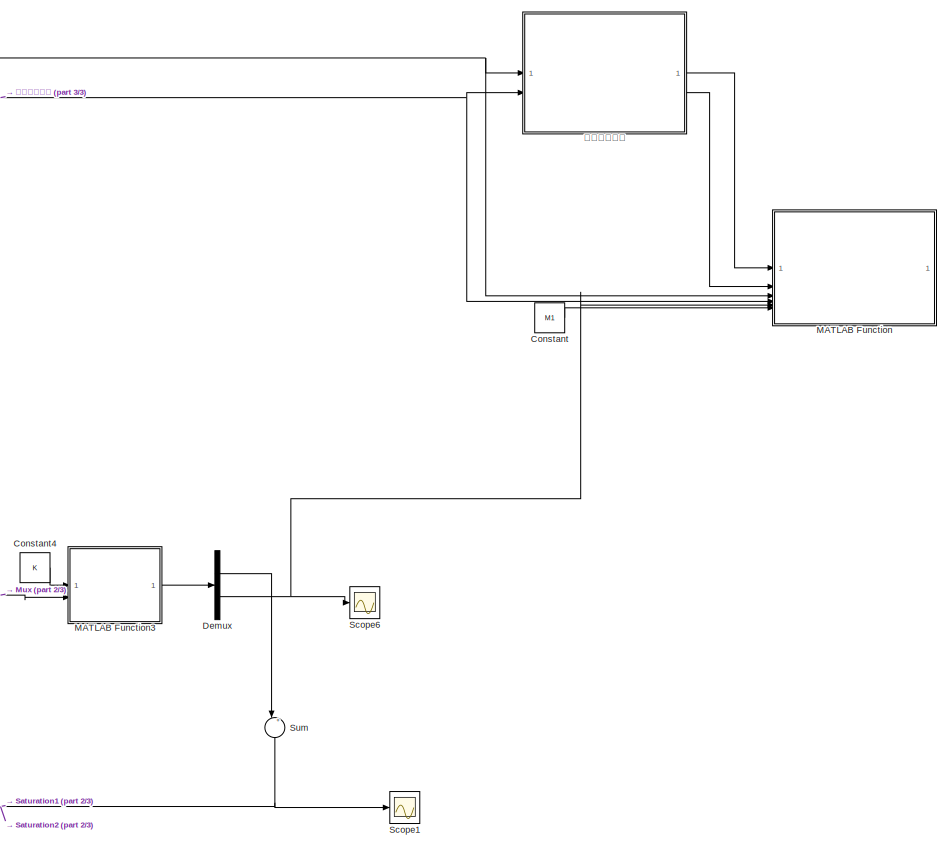
[diagram: root canvas - part 1/3, right side, full height]
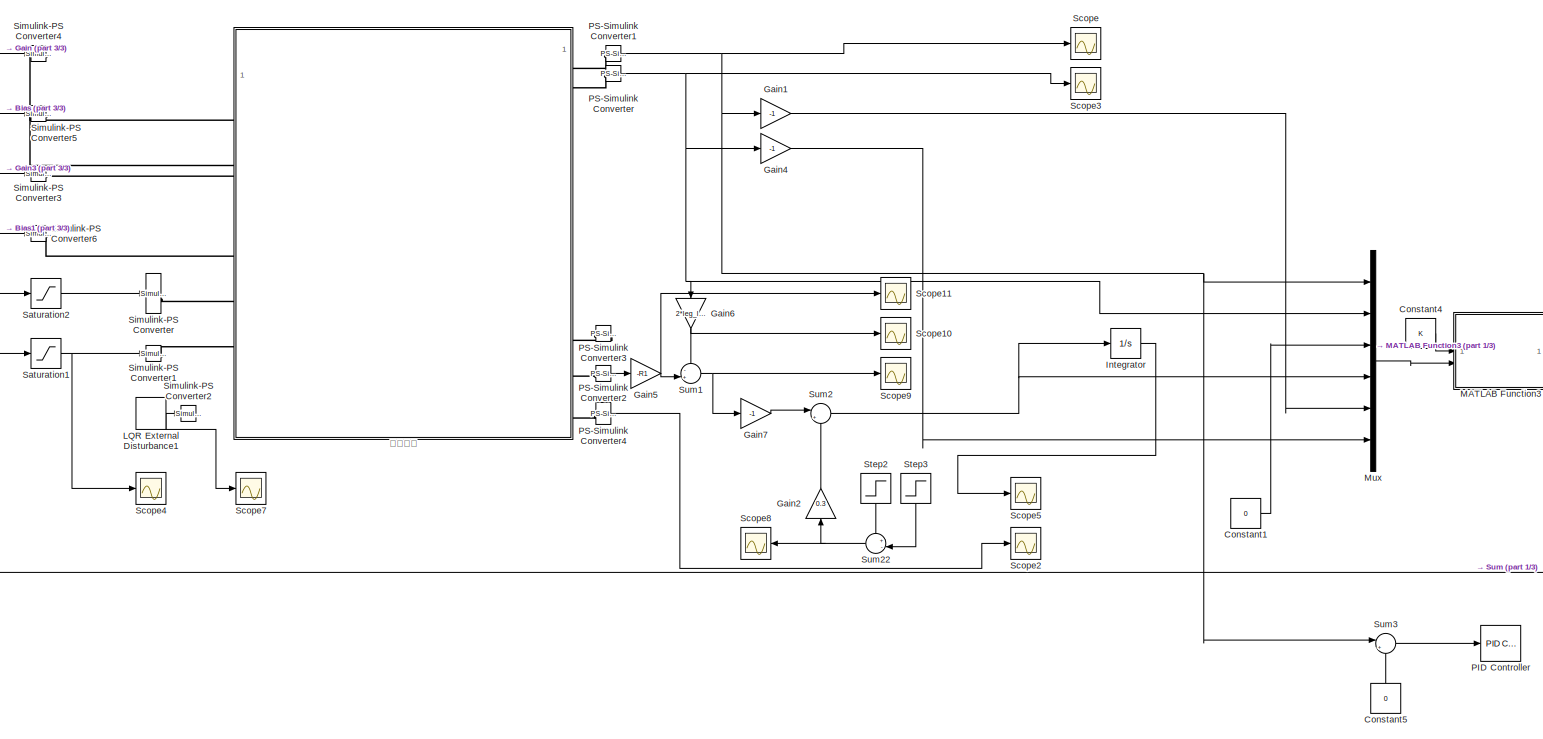
[diagram: root canvas - part 2/3, center side, full height]
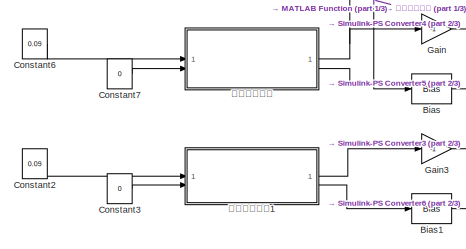
[diagram: root canvas - part 3/3, middle left region]
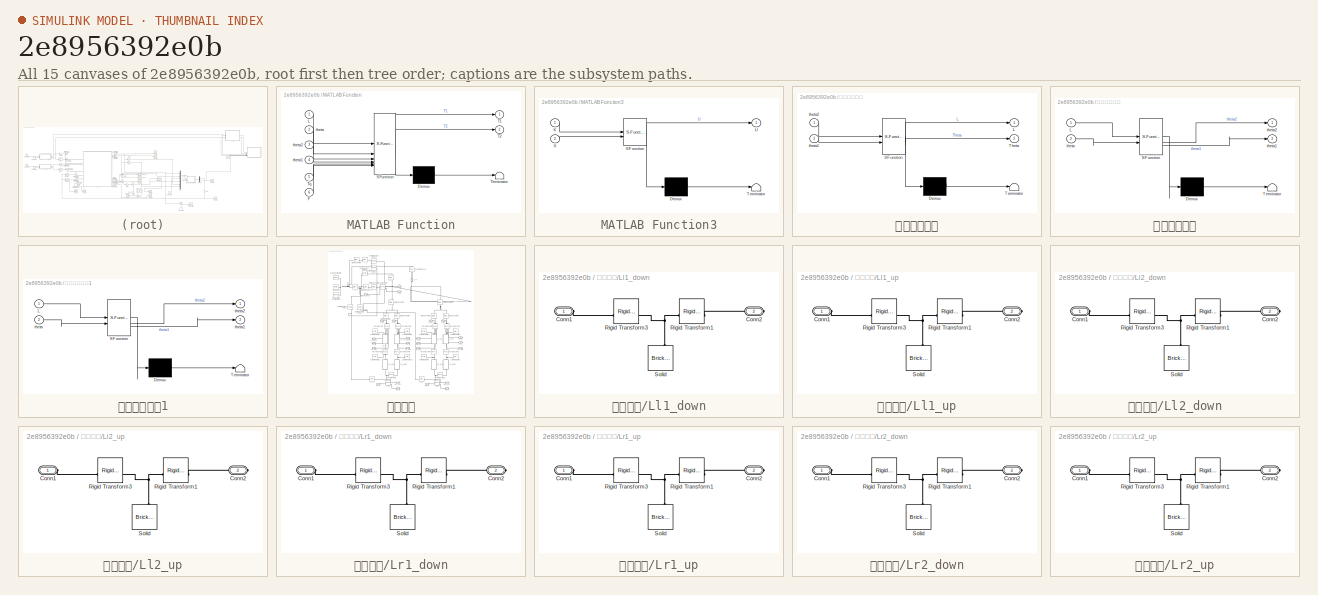
[diagram: thumbnail index - all 15 canvases of the model, root first then tree order]
MODEL slx_2e8956392e0b
KIND model
CONFIG AbsTol = auto
CONFIG EnableMultiTasking = off
CONFIG FixedStep = 0.001
CONFIG MaxStep = auto
CONFIG MinStep = auto
CONFIG RelTol = 1e-3
CONFIG SampleTimeConstraint = Unconstrained
CONFIG SolverName = VariableStepAuto
CONFIG StartTime = 0.0
CONFIG StopTime = 15
BLOCK [Bias] Bias
  Bias = -pi
  SaturateOnIntegerOverflow = off
BLOCK [Bias] Bias1
  Bias = -pi
  SaturateOnIntegerOverflow = off
BLOCK [Constant] Constant
  Value = M1
BLOCK [Constant] Constant1
  Value = 0
BLOCK [Constant] Constant2
  Value = 0.09
BLOCK [Constant] Constant3
  Value = 0
BLOCK [Constant] Constant4
  Value = K
BLOCK [Constant] Constant5
  NameLocation = right
  Value = 0
BLOCK [Constant] Constant6
  Value = 0.09
BLOCK [Constant] Constant7
  Value = 0
BLOCK [Demux] Demux
  Outputs = 2
BLOCK [Gain] Gain
  Gain = -1
BLOCK [Gain] Gain1
  Gain = -1
BLOCK [Gain] Gain2
  Gain = 0.3
  NameLocation = right
BLOCK [Gain] Gain3
  Gain = -1
BLOCK [Gain] Gain4
  Gain = -1
BLOCK [Gain] Gain5
  Gain = -R1
BLOCK [Gain] Gain6
  Gain = 2*leg_length
  NameLocation = left
BLOCK [Gain] Gain7
  Gain = -1
BLOCK [Integrator] Integrator
BLOCK [DiscretePulseGenerator] LQR External Disturbance1
  Amplitude = 10
  Period = 20
  PhaseDelay = 0.5
  PulseType = Time based
  PulseWidth = 0.1
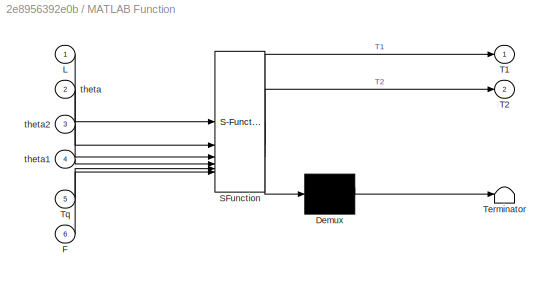
BLOCK [SubSystem] MATLAB Function
  ErrorFcn = Stateflow.Translate.translate
  PermitHierarchicalResolution = ExplicitOnly
  SFBlockType = MATLAB Function
  TreatAsAtomicUnit = on
BLOCK [Demux] MATLAB Function/ Demux 
  Outputs = 1
BLOCK [S-Function] MATLAB Function/ SFunction 
  EnableBusSupport = on
  FunctionName = sf_sfun
  PortCounts = [6 3]
  SFcnIsStateOwnerBlock = off
  SFunctionDeploymentMode = off
  Tag = Stateflow S-Function 1
BLOCK [Terminator] MATLAB Function/ Terminator 
BLOCK [Inport] MATLAB Function/F
  Port = 6
BLOCK [Inport] MATLAB Function/L
BLOCK [Outport] MATLAB Function/T1
  VectorParamsAs1DForOutWhenUnconnected = off
BLOCK [Outport] MATLAB Function/T2
  Port = 2
BLOCK [Inport] MATLAB Function/Tq
  Port = 5
BLOCK [Inport] MATLAB Function/theta
  Port = 2
BLOCK [Inport] MATLAB Function/theta1
  Port = 4
BLOCK [Inport] MATLAB Function/theta2
  Port = 3
BLOCK [SubSystem] MATLAB Function3
  ErrorFcn = Stateflow.Translate.translate
  PermitHierarchicalResolution = ExplicitOnly
  SFBlockType = MATLAB Function
  TreatAsAtomicUnit = on
BLOCK [Demux] MATLAB Function3/ Demux 
  Outputs = 1
BLOCK [S-Function] MATLAB Function3/ SFunction 
  EnableBusSupport = on
  FunctionName = sf_sfun
  PortCounts = [2 2]
  SFcnIsStateOwnerBlock = off
  SFunctionDeploymentMode = off
  Tag = Stateflow S-Function 6
BLOCK [Terminator] MATLAB Function3/ Terminator 
BLOCK [Inport] MATLAB Function3/K
BLOCK [Outport] MATLAB Function3/U
BLOCK [Inport] MATLAB Function3/X
  Port = 2
BLOCK [Mux] Mux
  DisplayOption = bar
  Inputs = 6
BLOCK [Reference] PID Controller  REF=slpidlib/PID Controller
  LibrarySourceBlock = simulink/Continuous/PID Controller
  SourceBlock = slpidlib/PID Controller
  SourceType = PID 1dof
BLOCK [Reference] PS-Simulink Converter  REF=nesl_utility/PS-Simulink
Converter
  SourceBlock = nesl_utility/PS-Simulink\nConverter
  SourceType = PS-Simulink\nConverter
BLOCK [Reference] PS-Simulink Converter1  REF=nesl_utility/PS-Simulink
Converter
  SourceBlock = nesl_utility/PS-Simulink\nConverter
  SourceType = PS-Simulink\nConverter
BLOCK [Reference] PS-Simulink Converter2  REF=nesl_utility/PS-Simulink
Converter
  SourceBlock = nesl_utility/PS-Simulink\nConverter
  SourceType = PS-Simulink\nConverter
BLOCK [Reference] PS-Simulink Converter3  REF=nesl_utility/PS-Simulink
Converter
  SourceBlock = nesl_utility/PS-Simulink\nConverter
  SourceType = PS-Simulink\nConverter
BLOCK [Reference] PS-Simulink Converter4  REF=nesl_utility/PS-Simulink
Converter
  SourceBlock = nesl_utility/PS-Simulink\nConverter
  SourceType = PS-Simulink\nConverter
BLOCK [Saturate] Saturation1
  LowerLimit = -20
  NameLocation = top
  UpperLimit = 20
  ZeroCross = off
BLOCK [Saturate] Saturation2
  LowerLimit = -20
  NameLocation = top
  UpperLimit = 20
  ZeroCross = off
BLOCK [Scope] Scope
  Floating = off
  NumInputPorts = 1
  ScopeSpecificationString = Simulink.scopes.TimeScopeBlockCfg('CurrentConfiguration', extmgr.ConfigurationSet(extmgr.Configuration('Core','General UI',true),extmgr.Configuration('Core','Source UI',true),extmgr.Configuration('Sources','WiredSimulink',true),extmgr.Configuration('Visuals','Time Domain',true,'SerializedDisplays',{struct('MinYLimReal','-0.93588','MaxYLimReal','0.63035','YLabelReal','','MinYLimMag','0.00000','MaxY...<+1442ch>
BLOCK [Scope] Scope1
  Floating = off
  NumInputPorts = 1
  ScopeSpecificationString = Simulink.scopes.TimeScopeBlockCfg('CurrentConfiguration', extmgr.ConfigurationSet(extmgr.Configuration('Core','General UI',true),extmgr.Configuration('Core','Source UI',true),extmgr.Configuration('Sources','WiredSimulink',true,'DataLoggingVariableName','ScopeData1'),extmgr.Configuration('Visuals','Time Domain',true,'SerializedDisplays',{struct('MinYLimReal','-0.45389','MaxYLimReal','0.45817','YLab...<+1475ch>
BLOCK [Scope] Scope10
  Floating = off
  NumInputPorts = 1
  ScopeSpecificationString = Simulink.scopes.TimeScopeBlockCfg('CurrentConfiguration', extmgr.ConfigurationSet(extmgr.Configuration('Core','General UI',true),extmgr.Configuration('Core','Source UI',true),extmgr.Configuration('Sources','WiredSimulink',true,'DataLoggingVariableName','ScopeData4'),extmgr.Configuration('Visuals','Time Domain',true,'SerializedDisplays',{struct('MinYLimReal','-0.22835','MaxYLimReal','0.22851','YLab...<+1490ch>
BLOCK [Scope] Scope11
  Floating = off
  NumInputPorts = 1
  ScopeSpecificationString = Simulink.scopes.TimeScopeBlockCfg('CurrentConfiguration', extmgr.ConfigurationSet(extmgr.Configuration('Core','General UI',true),extmgr.Configuration('Core','Source UI',true),extmgr.Configuration('Sources','WiredSimulink',true,'DataLoggingVariableName','ScopeData2'),extmgr.Configuration('Visuals','Time Domain',true,'SerializedDisplays',{struct('MinYLimReal','-0.30669','MaxYLimReal','0.22953','YLab...<+1490ch>
BLOCK [Scope] Scope2
  Floating = off
  NumInputPorts = 1
  ScopeSpecificationString = Simulink.scopes.TimeScopeBlockCfg('CurrentConfiguration', extmgr.ConfigurationSet(extmgr.Configuration('Core','General UI',true),extmgr.Configuration('Core','Source UI',true),extmgr.Configuration('Sources','WiredSimulink',true,'DataLoggingVariableName','ScopeData1'),extmgr.Configuration('Visuals','Time Domain',true,'SerializedDisplays',{struct('MinYLimReal','-0.26912','MaxYLimReal','2.42206','YLab...<+1481ch>
BLOCK [Scope] Scope3
  Floating = off
  NumInputPorts = 1
  ScopeSpecificationString = Simulink.scopes.TimeScopeBlockCfg('CurrentConfiguration', extmgr.ConfigurationSet(extmgr.Configuration('Core','General UI',true),extmgr.Configuration('Core','Source UI',true),extmgr.Configuration('Sources','WiredSimulink',true,'DataLoggingVariableName','ScopeData3'),extmgr.Configuration('Visuals','Time Domain',true,'SerializedDisplays',{struct('MinYLimReal','-4.54103','MaxYLimReal','5.36349','YLab...<+1493ch>
BLOCK [Scope] Scope4
  Floating = off
  NumInputPorts = 1
  ScopeSpecificationString = Simulink.scopes.TimeScopeBlockCfg('CurrentConfiguration', extmgr.ConfigurationSet(extmgr.Configuration('Core','General UI',true),extmgr.Configuration('Core','Source UI',true),extmgr.Configuration('Sources','WiredSimulink',true,'DataLoggingVariableName','ScopeData1'),extmgr.Configuration('Visuals','Time Domain',true,'SerializedDisplays',{struct('MinYLimReal','-25.00000','MaxYLimReal','25.00000','YL...<+1476ch>
BLOCK [Scope] Scope5
  Floating = off
  NumInputPorts = 1
  ScopeSpecificationString = Simulink.scopes.TimeScopeBlockCfg('CurrentConfiguration', extmgr.ConfigurationSet(extmgr.Configuration('Core','General UI',true),extmgr.Configuration('Core','Source UI',true),extmgr.Configuration('Sources','WiredSimulink',true,'DataLoggingVariableName','ScopeData2'),extmgr.Configuration('Visuals','Time Domain',true,'SerializedDisplays',{struct('MinYLimReal','-0.33885','MaxYLimReal','0.03765','YLab...<+1482ch>
BLOCK [Scope] Scope6
  Floating = off
  NumInputPorts = 1
  ScopeSpecificationString = Simulink.scopes.TimeScopeBlockCfg('CurrentConfiguration', extmgr.ConfigurationSet(extmgr.Configuration('Core','General UI',true),extmgr.Configuration('Core','Source UI',true),extmgr.Configuration('Sources','WiredSimulink',true,'DataLoggingVariableName','ScopeData2'),extmgr.Configuration('Visuals','Time Domain',true,'SerializedDisplays',{struct('MinYLimReal','-23.55546','MaxYLimReal','1.77895','YLa...<+1483ch>
BLOCK [Scope] Scope7
  Floating = off
  NumInputPorts = 1
  ScopeSpecificationString = Simulink.scopes.TimeScopeBlockCfg('CurrentConfiguration', extmgr.ConfigurationSet(extmgr.Configuration('Core','General UI',true),extmgr.Configuration('Core','Source UI',true),extmgr.Configuration('Sources','WiredSimulink',true,'DataLoggingVariableName','ScopeData1'),extmgr.Configuration('Visuals','Time Domain',true,'SerializedDisplays',{struct('MinYLimReal','-0.375','MaxYLimReal','3.375','YLabelRe...<+1472ch>
BLOCK [Scope] Scope8
  Floating = off
  NameLocation = top
  NumInputPorts = 1
  ScopeSpecificationString = Simulink.scopes.TimeScopeBlockCfg('CurrentConfiguration', extmgr.ConfigurationSet(extmgr.Configuration('Core','General UI',true),extmgr.Configuration('Core','Source UI',true),extmgr.Configuration('Sources','WiredSimulink',true,'DataLoggingVariableName','ScopeData3'),extmgr.Configuration('Visuals','Time Domain',true,'SerializedDisplays',{struct('MinYLimReal','-0.3125','MaxYLimReal','2.8125','YLabel...<+1458ch>
BLOCK [Scope] Scope9
  Floating = off
  NumInputPorts = 1
  ScopeSpecificationString = Simulink.scopes.TimeScopeBlockCfg('CurrentConfiguration', extmgr.ConfigurationSet(extmgr.Configuration('Core','General UI',true),extmgr.Configuration('Core','Source UI',true),extmgr.Configuration('Sources','WiredSimulink',true,'DataLoggingVariableName','ScopeData3'),extmgr.Configuration('Visuals','Time Domain',true,'SerializedDisplays',{struct('MinYLimReal','-3.41811','MaxYLimReal','0.41093','YLab...<+1489ch>
BLOCK [Reference] Simulink-PS Converter  REF=nesl_utility/Simulink-PS
Converter
  SourceBlock = nesl_utility/Simulink-PS\nConverter
  SourceType = Simulink-PS\nConverter
BLOCK [Reference] Simulink-PS Converter1  REF=nesl_utility/Simulink-PS
Converter
  SourceBlock = nesl_utility/Simulink-PS\nConverter
  SourceType = Simulink-PS\nConverter
BLOCK [Reference] Simulink-PS Converter2  REF=nesl_utility/Simulink-PS
Converter
  SourceBlock = nesl_utility/Simulink-PS\nConverter
  SourceType = Simulink-PS\nConverter
BLOCK [Reference] Simulink-PS Converter3  REF=nesl_utility/Simulink-PS
Converter
  SourceBlock = nesl_utility/Simulink-PS\nConverter
  SourceType = Simulink-PS\nConverter
BLOCK [Reference] Simulink-PS Converter4  REF=nesl_utility/Simulink-PS
Converter
  SourceBlock = nesl_utility/Simulink-PS\nConverter
  SourceType = Simulink-PS\nConverter
BLOCK [Reference] Simulink-PS Converter5  REF=nesl_utility/Simulink-PS
Converter
  SourceBlock = nesl_utility/Simulink-PS\nConverter
  SourceType = Simulink-PS\nConverter
BLOCK [Reference] Simulink-PS Converter6  REF=nesl_utility/Simulink-PS
Converter
  SourceBlock = nesl_utility/Simulink-PS\nConverter
  SourceType = Simulink-PS\nConverter
BLOCK [Step] Step2
  After = 2.5
  NameLocation = left
  SampleTime = 0
  Time = 0.5
BLOCK [Step] Step3
  After = 2.5
  NameLocation = left
  SampleTime = 0
  Time = 5
BLOCK [Sum] Sum
  Inputs = |++
  NameLocation = left
BLOCK [Sum] Sum1
  Inputs = -+|
BLOCK [Sum] Sum2
  Inputs = |+-
BLOCK [Sum] Sum22
  Inputs = +-|
  NameLocation = top
BLOCK [Sum] Sum3
  Inputs = |+-
BLOCK [SubSystem] 腿部位置计算
  ErrorFcn = Stateflow.Translate.translate
  PermitHierarchicalResolution = ExplicitOnly
  SFBlockType = MATLAB Function
  TreatAsAtomicUnit = on
BLOCK [Demux] 腿部位置计算/ Demux 
  Outputs = 1
BLOCK [S-Function] 腿部位置计算/ SFunction 
  EnableBusSupport = on
  FunctionName = sf_sfun
  PortCounts = [2 3]
  SFcnIsStateOwnerBlock = off
  SFunctionDeploymentMode = off
  Tag = Stateflow S-Function 2
BLOCK [Terminator] 腿部位置计算/ Terminator 
BLOCK [Outport] 腿部位置计算/L
BLOCK [Outport] 腿部位置计算/Theta
  Port = 2
BLOCK [Inport] 腿部位置计算/theta1
  Port = 2
BLOCK [Inport] 腿部位置计算/theta2
BLOCK [SubSystem] 腿部逆向解算
  ErrorFcn = Stateflow.Translate.translate
  PermitHierarchicalResolution = ExplicitOnly
  SFBlockType = MATLAB Function
  TreatAsAtomicUnit = on
BLOCK [Demux] 腿部逆向解算/ Demux 
  Outputs = 1
BLOCK [S-Function] 腿部逆向解算/ SFunction 
  EnableBusSupport = on
  FunctionName = sf_sfun
  PortCounts = [2 3]
  SFcnIsStateOwnerBlock = off
  SFunctionDeploymentMode = off
  Tag = Stateflow S-Function 3
BLOCK [Terminator] 腿部逆向解算/ Terminator 
BLOCK [Inport] 腿部逆向解算/L
BLOCK [Inport] 腿部逆向解算/theta
  Port = 2
BLOCK [Outport] 腿部逆向解算/theta1
  Port = 2
BLOCK [Outport] 腿部逆向解算/theta2
BLOCK [SubSystem] 腿部逆向解算1
  ErrorFcn = Stateflow.Translate.translate
  PermitHierarchicalResolution = ExplicitOnly
  SFBlockType = MATLAB Function
  TreatAsAtomicUnit = on
BLOCK [Demux] 腿部逆向解算1/ Demux 
  Outputs = 1
BLOCK [S-Function] 腿部逆向解算1/ SFunction 
  EnableBusSupport = on
  FunctionName = sf_sfun
  PortCounts = [2 3]
  SFcnIsStateOwnerBlock = off
  SFunctionDeploymentMode = off
  Tag = Stateflow S-Function 5
BLOCK [Terminator] 腿部逆向解算1/ Terminator 
BLOCK [Inport] 腿部逆向解算1/L
BLOCK [Inport] 腿部逆向解算1/theta
  Port = 2
BLOCK [Outport] 腿部逆向解算1/theta1
  Port = 2
BLOCK [Outport] 腿部逆向解算1/theta2
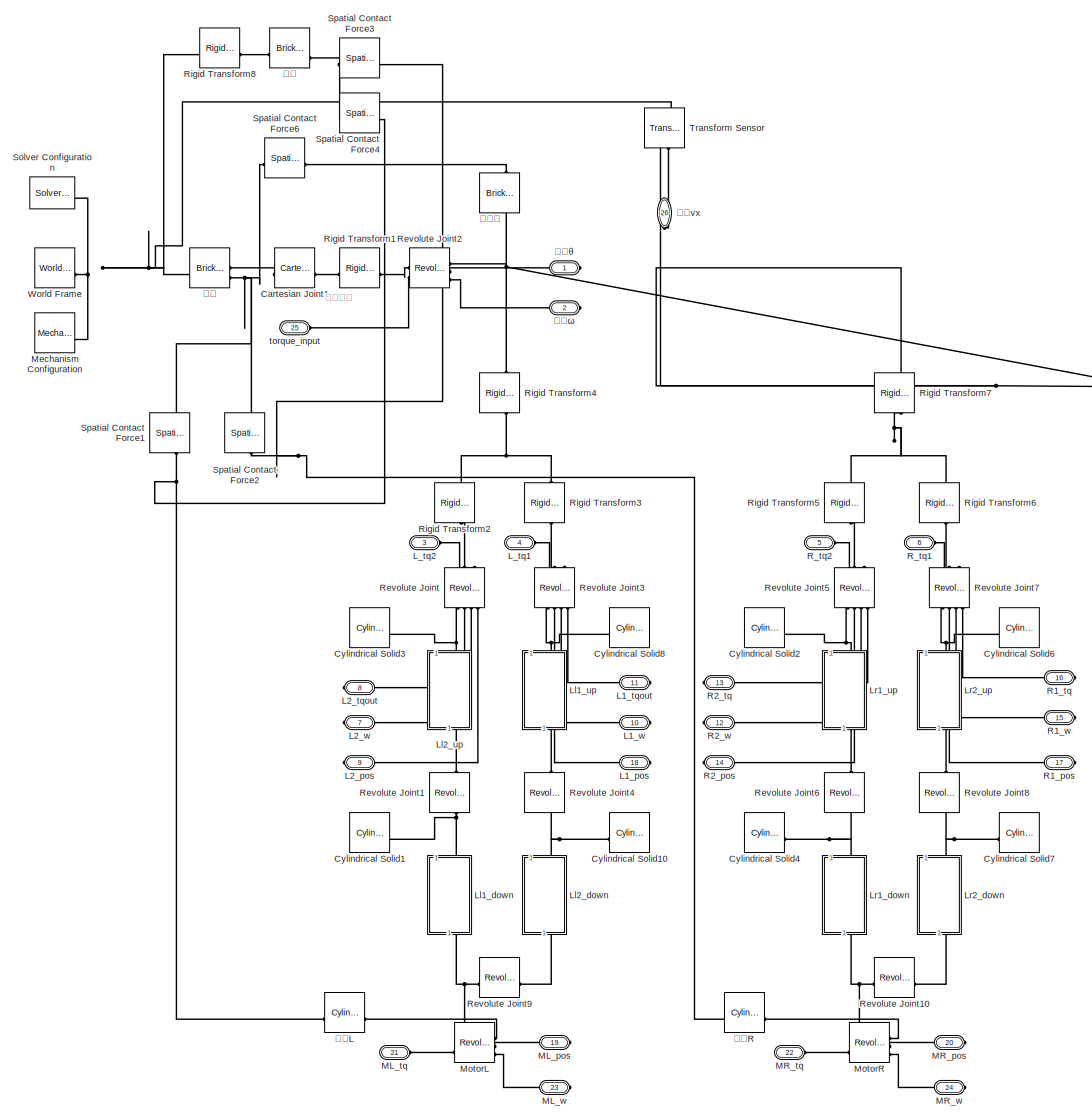
[diagram: 车体建模 - part 1/1, most of the canvas]
BLOCK [SubSystem] 车体建模
BLOCK [Reference] 车体建模/Cartesian Joint1  REF=sm_lib/Joints/Cartesian
Joint
  SourceBlock = sm_lib/Joints/Cartesian\nJoint
  SourceType = Cartesian\nJoint
BLOCK [Reference] 车体建模/Cylindrical Solid1  REF=sm_lib/Body Elements/Cylindrical Solid
  NameLocation = top
  SourceBlock = sm_lib/Body Elements/Cylindrical Solid
  SourceType = Cylindrical Solid
BLOCK [Reference] 车体建模/Cylindrical Solid10  REF=sm_lib/Body Elements/Cylindrical Solid
  SourceBlock = sm_lib/Body Elements/Cylindrical Solid
  SourceType = Cylindrical Solid
BLOCK [Reference] 车体建模/Cylindrical Solid2  REF=sm_lib/Body Elements/Cylindrical Solid
  NameLocation = top
  SourceBlock = sm_lib/Body Elements/Cylindrical Solid
  SourceType = Cylindrical Solid
BLOCK [Reference] 车体建模/Cylindrical Solid3  REF=sm_lib/Body Elements/Cylindrical Solid
  NameLocation = top
  SourceBlock = sm_lib/Body Elements/Cylindrical Solid
  SourceType = Cylindrical Solid
BLOCK [Reference] 车体建模/Cylindrical Solid4  REF=sm_lib/Body Elements/Cylindrical Solid
  NameLocation = top
  SourceBlock = sm_lib/Body Elements/Cylindrical Solid
  SourceType = Cylindrical Solid
BLOCK [Reference] 车体建模/Cylindrical Solid6  REF=sm_lib/Body Elements/Cylindrical Solid
  SourceBlock = sm_lib/Body Elements/Cylindrical Solid
  SourceType = Cylindrical Solid
BLOCK [Reference] 车体建模/Cylindrical Solid7  REF=sm_lib/Body Elements/Cylindrical Solid
  SourceBlock = sm_lib/Body Elements/Cylindrical Solid
  SourceType = Cylindrical Solid
BLOCK [Reference] 车体建模/Cylindrical Solid8  REF=sm_lib/Body Elements/Cylindrical Solid
  SourceBlock = sm_lib/Body Elements/Cylindrical Solid
  SourceType = Cylindrical Solid
BLOCK [PMIOPort] 车体建模/L1_pos
  Port = 18
  Side = Right
BLOCK [PMIOPort] 车体建模/L1_tqout
  Port = 11
  Side = Right
BLOCK [PMIOPort] 车体建模/L1_w
  Port = 10
  Side = Right
BLOCK [PMIOPort] 车体建模/L2_pos
  Port = 9
  Side = Right
BLOCK [PMIOPort] 车体建模/L2_tqout
  Port = 8
  Side = Right
BLOCK [PMIOPort] 车体建模/L2_w
  Port = 7
  Side = Right
BLOCK [PMIOPort] 车体建模/L_tq1
  Port = 4
  Side = Left
BLOCK [PMIOPort] 车体建模/L_tq2
  Port = 3
  Side = Left
BLOCK [SubSystem] 车体建模/Ll1_down
  NameLocation = left
BLOCK [PMIOPort] 车体建模/Ll1_down/Conn1
  Side = Left
BLOCK [PMIOPort] 车体建模/Ll1_down/Conn2
  Port = 2
  Side = Right
BLOCK [Reference] 车体建模/Ll1_down/Rigid Transform1  REF=sm_lib/Frames and
Transforms/Rigid
Transform
  SourceBlock = sm_lib/Frames and\nTransforms/Rigid\nTransform
  SourceType = Rigid\nTransform
BLOCK [Reference] 车体建模/Ll1_down/Rigid Transform3  REF=sm_lib/Frames and
Transforms/Rigid
Transform
  SourceBlock = sm_lib/Frames and\nTransforms/Rigid\nTransform
  SourceType = Rigid\nTransform
BLOCK [Reference] 车体建模/Ll1_down/Solid  REF=sm_lib/Body Elements/Brick Solid
  NameLocation = right
  SourceBlock = sm_lib/Body Elements/Brick Solid
  SourceType = Brick Solid
BLOCK [SubSystem] 车体建模/Ll1_up
  NameLocation = left
BLOCK [PMIOPort] 车体建模/Ll1_up/Conn1
  Side = Left
BLOCK [PMIOPort] 车体建模/Ll1_up/Conn2
  Port = 2
  Side = Right
BLOCK [Reference] 车体建模/Ll1_up/Rigid Transform1  REF=sm_lib/Frames and
Transforms/Rigid
Transform
  SourceBlock = sm_lib/Frames and\nTransforms/Rigid\nTransform
  SourceType = Rigid\nTransform
BLOCK [Reference] 车体建模/Ll1_up/Rigid Transform3  REF=sm_lib/Frames and
Transforms/Rigid
Transform
  SourceBlock = sm_lib/Frames and\nTransforms/Rigid\nTransform
  SourceType = Rigid\nTransform
BLOCK [Reference] 车体建模/Ll1_up/Solid  REF=sm_lib/Body Elements/Brick Solid
  NameLocation = right
  SourceBlock = sm_lib/Body Elements/Brick Solid
  SourceType = Brick Solid
BLOCK [SubSystem] 车体建模/Ll2_down
  NameLocation = left
BLOCK [PMIOPort] 车体建模/Ll2_down/Conn1
  Side = Left
BLOCK [PMIOPort] 车体建模/Ll2_down/Conn2
  Port = 2
  Side = Right
BLOCK [Reference] 车体建模/Ll2_down/Rigid Transform1  REF=sm_lib/Frames and
Transforms/Rigid
Transform
  SourceBlock = sm_lib/Frames and\nTransforms/Rigid\nTransform
  SourceType = Rigid\nTransform
BLOCK [Reference] 车体建模/Ll2_down/Rigid Transform3  REF=sm_lib/Frames and
Transforms/Rigid
Transform
  SourceBlock = sm_lib/Frames and\nTransforms/Rigid\nTransform
  SourceType = Rigid\nTransform
BLOCK [Reference] 车体建模/Ll2_down/Solid  REF=sm_lib/Body Elements/Brick Solid
  NameLocation = right
  SourceBlock = sm_lib/Body Elements/Brick Solid
  SourceType = Brick Solid
BLOCK [SubSystem] 车体建模/Ll2_up
  NameLocation = left
BLOCK [PMIOPort] 车体建模/Ll2_up/Conn1
  Side = Left
BLOCK [PMIOPort] 车体建模/Ll2_up/Conn2
  Port = 2
  Side = Right
BLOCK [Reference] 车体建模/Ll2_up/Rigid Transform1  REF=sm_lib/Frames and
Transforms/Rigid
Transform
  SourceBlock = sm_lib/Frames and\nTransforms/Rigid\nTransform
  SourceType = Rigid\nTransform
BLOCK [Reference] 车体建模/Ll2_up/Rigid Transform3  REF=sm_lib/Frames and
Transforms/Rigid
Transform
  SourceBlock = sm_lib/Frames and\nTransforms/Rigid\nTransform
  SourceType = Rigid\nTransform
BLOCK [Reference] 车体建模/Ll2_up/Solid  REF=sm_lib/Body Elements/Brick Solid
  NameLocation = right
  SourceBlock = sm_lib/Body Elements/Brick Solid
  SourceType = Brick Solid
BLOCK [SubSystem] 车体建模/Lr1_down
  NameLocation = left
BLOCK [PMIOPort] 车体建模/Lr1_down/Conn1
  Side = Left
BLOCK [PMIOPort] 车体建模/Lr1_down/Conn2
  Port = 2
  Side = Right
BLOCK [Reference] 车体建模/Lr1_down/Rigid Transform1  REF=sm_lib/Frames and
Transforms/Rigid
Transform
  SourceBlock = sm_lib/Frames and\nTransforms/Rigid\nTransform
  SourceType = Rigid\nTransform
BLOCK [Reference] 车体建模/Lr1_down/Rigid Transform3  REF=sm_lib/Frames and
Transforms/Rigid
Transform
  SourceBlock = sm_lib/Frames and\nTransforms/Rigid\nTransform
  SourceType = Rigid\nTransform
BLOCK [Reference] 车体建模/Lr1_down/Solid  REF=sm_lib/Body Elements/Brick Solid
  NameLocation = right
  SourceBlock = sm_lib/Body Elements/Brick Solid
  SourceType = Brick Solid
BLOCK [SubSystem] 车体建模/Lr1_up
  NameLocation = left
BLOCK [PMIOPort] 车体建模/Lr1_up/Conn1
  Side = Left
BLOCK [PMIOPort] 车体建模/Lr1_up/Conn2
  Port = 2
  Side = Right
BLOCK [Reference] 车体建模/Lr1_up/Rigid Transform1  REF=sm_lib/Frames and
Transforms/Rigid
Transform
  SourceBlock = sm_lib/Frames and\nTransforms/Rigid\nTransform
  SourceType = Rigid\nTransform
BLOCK [Reference] 车体建模/Lr1_up/Rigid Transform3  REF=sm_lib/Frames and
Transforms/Rigid
Transform
  SourceBlock = sm_lib/Frames and\nTransforms/Rigid\nTransform
  SourceType = Rigid\nTransform
BLOCK [Reference] 车体建模/Lr1_up/Solid  REF=sm_lib/Body Elements/Brick Solid
  NameLocation = right
  SourceBlock = sm_lib/Body Elements/Brick Solid
  SourceType = Brick Solid
BLOCK [SubSystem] 车体建模/Lr2_down
  NameLocation = left
BLOCK [PMIOPort] 车体建模/Lr2_down/Conn1
  Side = Left
BLOCK [PMIOPort] 车体建模/Lr2_down/Conn2
  Port = 2
  Side = Right
BLOCK [Reference] 车体建模/Lr2_down/Rigid Transform1  REF=sm_lib/Frames and
Transforms/Rigid
Transform
  SourceBlock = sm_lib/Frames and\nTransforms/Rigid\nTransform
  SourceType = Rigid\nTransform
BLOCK [Reference] 车体建模/Lr2_down/Rigid Transform3  REF=sm_lib/Frames and
Transforms/Rigid
Transform
  SourceBlock = sm_lib/Frames and\nTransforms/Rigid\nTransform
  SourceType = Rigid\nTransform
BLOCK [Reference] 车体建模/Lr2_down/Solid  REF=sm_lib/Body Elements/Brick Solid
  NameLocation = right
  SourceBlock = sm_lib/Body Elements/Brick Solid
  SourceType = Brick Solid
BLOCK [SubSystem] 车体建模/Lr2_up
  NameLocation = left
BLOCK [PMIOPort] 车体建模/Lr2_up/Conn1
  Side = Left
BLOCK [PMIOPort] 车体建模/Lr2_up/Conn2
  Port = 2
  Side = Right
BLOCK [Reference] 车体建模/Lr2_up/Rigid Transform1  REF=sm_lib/Frames and
Transforms/Rigid
Transform
  SourceBlock = sm_lib/Frames and\nTransforms/Rigid\nTransform
  SourceType = Rigid\nTransform
BLOCK [Reference] 车体建模/Lr2_up/Rigid Transform3  REF=sm_lib/Frames and
Transforms/Rigid
Transform
  SourceBlock = sm_lib/Frames and\nTransforms/Rigid\nTransform
  SourceType = Rigid\nTransform
BLOCK [Reference] 车体建模/Lr2_up/Solid  REF=sm_lib/Body Elements/Brick Solid
  NameLocation = right
  SourceBlock = sm_lib/Body Elements/Brick Solid
  SourceType = Brick Solid
BLOCK [PMIOPort] 车体建模/ML_pos
  Port = 19
  Side = Right
BLOCK [PMIOPort] 车体建模/ML_tq
  Port = 21
  Side = Left
BLOCK [PMIOPort] 车体建模/ML_w
  Port = 23
  Side = Right
BLOCK [PMIOPort] 车体建模/MR_pos
  Port = 20
  Side = Right
BLOCK [PMIOPort] 车体建模/MR_tq
  Port = 22
  Side = Left
BLOCK [PMIOPort] 车体建模/MR_w
  Port = 24
  Side = Right
BLOCK [Reference] 车体建模/Mechanism Configuration  REF=sm_lib/Utilities/Mechanism
Configuration
  SourceBlock = sm_lib/Utilities/Mechanism\nConfiguration
  SourceType = Mechanism\nConfiguration
BLOCK [Reference] 车体建模/MotorL  REF=sm_lib/Joints/Revolute Joint
  SourceBlock = sm_lib/Joints/Revolute Joint
  SourceType = Revolute Joint
BLOCK [Reference] 车体建模/MotorR  REF=sm_lib/Joints/Revolute Joint
  SourceBlock = sm_lib/Joints/Revolute Joint
  SourceType = Revolute Joint
BLOCK [PMIOPort] 车体建模/R1_pos
  Port = 17
  Side = Right
BLOCK [PMIOPort] 车体建模/R1_tq
  Port = 16
  Side = Right
BLOCK [PMIOPort] 车体建模/R1_w
  Port = 15
  Side = Right
BLOCK [PMIOPort] 车体建模/R2_pos
  Port = 14
  Side = Right
BLOCK [PMIOPort] 车体建模/R2_tq
  Port = 13
  Side = Right
BLOCK [PMIOPort] 车体建模/R2_w
  Port = 12
  Side = Right
BLOCK [PMIOPort] 车体建模/R_tq1
  Port = 6
  Side = Left
BLOCK [PMIOPort] 车体建模/R_tq2
  Port = 5
  Side = Left
BLOCK [Reference] 车体建模/Revolute Joint  REF=sm_lib/Joints/Revolute Joint
  NameLocation = left
  SourceBlock = sm_lib/Joints/Revolute Joint
  SourceType = Revolute Joint
BLOCK [Reference] 车体建模/Revolute Joint1  REF=sm_lib/Joints/Revolute Joint
  NameLocation = left
  SourceBlock = sm_lib/Joints/Revolute Joint
  SourceType = Revolute Joint
BLOCK [Reference] 车体建模/Revolute Joint10  REF=sm_lib/Joints/Revolute Joint
  SourceBlock = sm_lib/Joints/Revolute Joint
  SourceType = Revolute Joint
BLOCK [Reference] 车体建模/Revolute Joint2  REF=sm_lib/Joints/Revolute Joint
  SourceBlock = sm_lib/Joints/Revolute Joint
  SourceType = Revolute Joint
BLOCK [Reference] 车体建模/Revolute Joint3  REF=sm_lib/Joints/Revolute Joint
  NameLocation = left
  SourceBlock = sm_lib/Joints/Revolute Joint
  SourceType = Revolute Joint
BLOCK [Reference] 车体建模/Revolute Joint4  REF=sm_lib/Joints/Revolute Joint
  NameLocation = left
  SourceBlock = sm_lib/Joints/Revolute Joint
  SourceType = Revolute Joint
BLOCK [Reference] 车体建模/Revolute Joint5  REF=sm_lib/Joints/Revolute Joint
  NameLocation = left
  SourceBlock = sm_lib/Joints/Revolute Joint
  SourceType = Revolute Joint
BLOCK [Reference] 车体建模/Revolute Joint6  REF=sm_lib/Joints/Revolute Joint
  NameLocation = left
  SourceBlock = sm_lib/Joints/Revolute Joint
  SourceType = Revolute Joint
BLOCK [Reference] 车体建模/Revolute Joint7  REF=sm_lib/Joints/Revolute Joint
  NameLocation = left
  SourceBlock = sm_lib/Joints/Revolute Joint
  SourceType = Revolute Joint
BLOCK [Reference] 车体建模/Revolute Joint8  REF=sm_lib/Joints/Revolute Joint
  NameLocation = left
  SourceBlock = sm_lib/Joints/Revolute Joint
  SourceType = Revolute Joint
BLOCK [Reference] 车体建模/Revolute Joint9  REF=sm_lib/Joints/Revolute Joint
  SourceBlock = sm_lib/Joints/Revolute Joint
  SourceType = Revolute Joint
BLOCK [Reference] 车体建模/Rigid Transform1  REF=sm_lib/Frames and
Transforms/Rigid
Transform
  SourceBlock = sm_lib/Frames and\nTransforms/Rigid\nTransform
  SourceType = Rigid\nTransform
BLOCK [Reference] 车体建模/Rigid Transform2  REF=sm_lib/Frames and
Transforms/Rigid
Transform
  NameLocation = left
  SourceBlock = sm_lib/Frames and\nTransforms/Rigid\nTransform
  SourceType = Rigid\nTransform
BLOCK [Reference] 车体建模/Rigid Transform3  REF=sm_lib/Frames and
Transforms/Rigid
Transform
  NameLocation = left
  SourceBlock = sm_lib/Frames and\nTransforms/Rigid\nTransform
  SourceType = Rigid\nTransform
BLOCK [Reference] 车体建模/Rigid Transform4  REF=sm_lib/Frames and
Transforms/Rigid
Transform
  NameLocation = left
  SourceBlock = sm_lib/Frames and\nTransforms/Rigid\nTransform
  SourceType = Rigid\nTransform
BLOCK [Reference] 车体建模/Rigid Transform5  REF=sm_lib/Frames and
Transforms/Rigid
Transform
  NameLocation = left
  SourceBlock = sm_lib/Frames and\nTransforms/Rigid\nTransform
  SourceType = Rigid\nTransform
BLOCK [Reference] 车体建模/Rigid Transform6  REF=sm_lib/Frames and
Transforms/Rigid
Transform
  NameLocation = left
  SourceBlock = sm_lib/Frames and\nTransforms/Rigid\nTransform
  SourceType = Rigid\nTransform
BLOCK [Reference] 车体建模/Rigid Transform7  REF=sm_lib/Frames and
Transforms/Rigid
Transform
  NameLocation = left
  SourceBlock = sm_lib/Frames and\nTransforms/Rigid\nTransform
  SourceType = Rigid\nTransform
BLOCK [Reference] 车体建模/Rigid Transform8  REF=sm_lib/Frames and
Transforms/Rigid
Transform
  Commented = on
  SourceBlock = sm_lib/Frames and\nTransforms/Rigid\nTransform
  SourceType = Rigid\nTransform
BLOCK [Reference] 车体建模/Solver Configuration  REF=nesl_utility/Solver
Configuration
  SourceBlock = nesl_utility/Solver\nConfiguration
  SourceType = Solver\nConfiguration
BLOCK [Reference] 车体建模/Spatial Contact Force1  REF=sm_lib/Forces and
Torques/Spatial
Contact Force
  NameLocation = right
  SourceBlock = sm_lib/Forces and\nTorques/Spatial\nContact Force
  SourceType = Spatial\nContact Force
BLOCK [Reference] 车体建模/Spatial Contact Force2  REF=sm_lib/Forces and
Torques/Spatial
Contact Force
  NameLocation = right
  SourceBlock = sm_lib/Forces and\nTorques/Spatial\nContact Force
  SourceType = Spatial\nContact Force
BLOCK [Reference] 车体建模/Spatial Contact Force3  REF=sm_lib/Forces and
Torques/Spatial
Contact Force
  Commented = on
  SourceBlock = sm_lib/Forces and\nTorques/Spatial\nContact Force
  SourceType = Spatial\nContact Force
BLOCK [Reference] 车体建模/Spatial Contact Force4  REF=sm_lib/Forces and
Torques/Spatial
Contact Force
  Commented = on
  SourceBlock = sm_lib/Forces and\nTorques/Spatial\nContact Force
  SourceType = Spatial\nContact Force
BLOCK [Reference] 车体建模/Spatial Contact Force6  REF=sm_lib/Forces and
Torques/Spatial
Contact Force
  SourceBlock = sm_lib/Forces and\nTorques/Spatial\nContact Force
  SourceType = Spatial\nContact Force
BLOCK [Reference] 车体建模/Transform Sensor  REF=sm_lib/Frames and
Transforms/Transform
Sensor
  NameLocation = left
  SourceBlock = sm_lib/Frames and\nTransforms/Transform\nSensor
  SourceType = Transform\nSensor
BLOCK [Reference] 车体建模/World Frame  REF=sm_lib/Frames and
Transforms/World Frame
  SourceBlock = sm_lib/Frames and\nTransforms/World Frame
  SourceType = World Frame
BLOCK [PMIOPort] 车体建模/torque_input
  Port = 25
  Side = Left
BLOCK [Reference] 车体建模/主机体  REF=sm_lib/Body Elements/Brick Solid
  NameLocation = right
  SourceBlock = sm_lib/Body Elements/Brick Solid
  SourceType = Brick Solid
BLOCK [Reference] 车体建模/台阶  REF=sm_lib/Body Elements/Brick Solid
  Commented = on
  SourceBlock = sm_lib/Body Elements/Brick Solid
  SourceType = Brick Solid
BLOCK [Reference] 车体建模/地面  REF=sm_lib/Body Elements/Brick Solid
  SourceBlock = sm_lib/Body Elements/Brick Solid
  SourceType = Brick Solid
BLOCK [PMIOPort] 车体建模/车体vx
  NameLocation = left
  Port = 26
  Side = Right
BLOCK [PMIOPort] 车体建模/车体θ
  Side = Right
BLOCK [PMIOPort] 车体建模/车体ω
  Port = 2
  Side = Right
BLOCK [Reference] 车体建模/轮子L  REF=sm_lib/Body Elements/Cylindrical Solid
  NameLocation = top
  SourceBlock = sm_lib/Body Elements/Cylindrical Solid
  SourceType = Cylindrical Solid
BLOCK [Reference] 车体建模/轮子R  REF=sm_lib/Body Elements/Cylindrical Solid
  NameLocation = top
  SourceBlock = sm_lib/Body Elements/Cylindrical Solid
  SourceType = Cylindrical Solid
ANNOTATION 车体建模: 初始高度
LINE Bias1:1 -> Simulink-PS Converter6:1
LINE Bias:1 -> Simulink-PS Converter5:1
LINE Constant1:1 -> Mux:3
LINE Constant2:1 -> 腿部逆向解算1:1
LINE Constant3:1 -> 腿部逆向解算1:2
LINE Constant4:1 -> MATLAB Function3:1
LINE Constant5:1 -> Sum3:2
LINE Constant6:1 -> 腿部逆向解算:1
LINE Constant7:1 -> 腿部逆向解算:2
LINE Constant:1 -> MATLAB Function:6
LINE Demux:1 -> Sum:1
NET Demux:2 -> MATLAB Function:5, Scope6:1
LINE Gain1:1 -> Mux:5
LINE Gain2:1 -> Sum2:2
LINE Gain3:1 -> Simulink-PS Converter3:1
LINE Gain4:1 -> Mux:6
NET Gain5:1 -> Scope11:1, Sum1:2
NET Gain6:1 -> Scope10:1, Sum1:1
LINE Gain7:1 -> Sum2:1
LINE Gain:1 -> Simulink-PS Converter4:1
LINE Integrator:1 -> Scope5:1
NET LQR External Disturbance1:1 -> Scope7:1, Simulink-PS Converter2:1
LINE MATLAB Function3:1 -> Demux:1
LINE Mux:1 -> MATLAB Function3:2
NET PS-Simulink Converter1:1 -> Gain1:1, Mux:1, Scope:1, Sum3:1
LINE PS-Simulink Converter2:1 -> Gain5:1
LINE PS-Simulink Converter4:1 -> Scope2:1
NET PS-Simulink Converter:1 -> Gain4:1, Gain6:1, Mux:2, Scope3:1
NET Saturation1:1 -> Scope4:1, Simulink-PS Converter1:1
LINE Saturation2:1 -> Simulink-PS Converter:1
LINE Step2:1 -> Sum22:1
LINE Step3:1 -> Sum22:2
NET Sum1:1 -> Gain7:1, Scope9:1
NET Sum22:1 -> Gain2:1, Scope8:1
NET Sum2:1 -> Integrator:1, Mux:4
LINE Sum3:1 -> PID Controller:1
NET Sum:1 -> Saturation1:1, Saturation2:1, Scope1:1
LINE 腿部位置计算:1 -> MATLAB Function:1
LINE 腿部位置计算:2 -> MATLAB Function:2
LINE 腿部逆向解算1:1 -> Gain3:1
LINE 腿部逆向解算1:2 -> Bias1:1
NET 腿部逆向解算:1 -> Gain:1, MATLAB Function:3, 腿部位置计算:1
NET 腿部逆向解算:2 -> Bias:1, MATLAB Function:4, 腿部位置计算:2
PLINE PS-Simulink Converter1:LConn1 -- 车体建模:RConn1
PLINE PS-Simulink Converter2:LConn1 -- 车体建模:RConn17
PLINE PS-Simulink Converter3:LConn1 -- 车体建模:RConn15
PLINE PS-Simulink Converter4:LConn1 -- 车体建模:RConn19
PLINE PS-Simulink Converter:LConn1 -- 车体建模:RConn2
PLINE Simulink-PS Converter1:RConn1 -- 车体建模:LConn6
PLINE Simulink-PS Converter3:RConn1 -- 车体建模:LConn3
PLINE Simulink-PS Converter4:RConn1 -- 车体建模:LConn1
PLINE Simulink-PS Converter5:RConn1 -- 车体建模:LConn2
PLINE Simulink-PS Converter6:RConn1 -- 车体建模:LConn4
PLINE Simulink-PS Converter:RConn1 -- 车体建模:LConn5
PLINE 车体建模/Cartesian Joint1:LConn1 -- 车体建模/地面:LConn1
PLINE 车体建模/Cartesian Joint1:RConn1 -- 车体建模/Rigid Transform1:LConn1
PNET net1: 车体建模/Cylindrical Solid10:RConn1 -- 车体建模/Ll2_down:LConn1 -- 车体建模/Revolute Joint4:RConn1
PNET net2: 车体建模/Cylindrical Solid1:RConn1 -- 车体建模/Ll1_down:LConn1 -- 车体建模/Revolute Joint1:RConn1
PNET net3: 车体建模/Cylindrical Solid2:RConn1 -- 车体建模/Lr1_up:LConn1 -- 车体建模/Revolute Joint5:RConn1
PNET net4: 车体建模/Cylindrical Solid3:RConn1 -- 车体建模/Ll2_up:LConn1 -- 车体建模/Revolute Joint:RConn1
PNET net5: 车体建模/Cylindrical Solid4:RConn1 -- 车体建模/Lr1_down:LConn1 -- 车体建模/Revolute Joint6:RConn1
PNET net6: 车体建模/Cylindrical Solid6:RConn1 -- 车体建模/Lr2_up:LConn1 -- 车体建模/Revolute Joint7:RConn1
PNET net7: 车体建模/Cylindrical Solid7:RConn1 -- 车体建模/Lr2_down:LConn1 -- 车体建模/Revolute Joint8:RConn1
PNET net8: 车体建模/Cylindrical Solid8:RConn1 -- 车体建模/Ll1_up:LConn1 -- 车体建模/Revolute Joint3:RConn1
PLINE 车体建模/L1_pos:RConn1 -- 车体建模/Revolute Joint3:RConn2
PLINE 车体建模/L1_tqout:RConn1 -- 车体建模/Revolute Joint3:RConn4
PLINE 车体建模/L1_w:RConn1 -- 车体建模/Revolute Joint3:RConn3
PLINE 车体建模/L2_pos:RConn1 -- 车体建模/Revolute Joint:RConn4
PLINE 车体建模/L2_tqout:RConn1 -- 车体建模/Revolute Joint:RConn2
PLINE 车体建模/L2_w:RConn1 -- 车体建模/Revolute Joint:RConn3
PLINE 车体建模/L_tq1:RConn1 -- 车体建模/Revolute Joint3:LConn2
PLINE 车体建模/L_tq2:RConn1 -- 车体建模/Revolute Joint:LConn2
PLINE 车体建模/Ll1_down/Conn1:RConn1 -- 车体建模/Ll1_down/Rigid Transform3:LConn1
PLINE 车体建模/Ll1_down/Conn2:RConn1 -- 车体建模/Ll1_down/Rigid Transform1:RConn1
PNET net9: 车体建模/Ll1_down/Rigid Transform1:LConn1 -- 车体建模/Ll1_down/Rigid Transform3:RConn1 -- 车体建模/Ll1_down/Solid:RConn1
PNET net10: 车体建模/Ll1_down:RConn1 -- 车体建模/MotorL:LConn1 -- 车体建模/Revolute Joint9:LConn1
PLINE 车体建模/Ll1_up/Conn1:RConn1 -- 车体建模/Ll1_up/Rigid Transform3:LConn1
PLINE 车体建模/Ll1_up/Conn2:RConn1 -- 车体建模/Ll1_up/Rigid Transform1:RConn1
PNET net11: 车体建模/Ll1_up/Rigid Transform1:LConn1 -- 车体建模/Ll1_up/Rigid Transform3:RConn1 -- 车体建模/Ll1_up/Solid:RConn1
PLINE 车体建模/Ll1_up:RConn1 -- 车体建模/Revolute Joint4:LConn1
PLINE 车体建模/Ll2_down/Conn1:RConn1 -- 车体建模/Ll2_down/Rigid Transform3:LConn1
PLINE 车体建模/Ll2_down/Conn2:RConn1 -- 车体建模/Ll2_down/Rigid Transform1:RConn1
PNET net12: 车体建模/Ll2_down/Rigid Transform1:LConn1 -- 车体建模/Ll2_down/Rigid Transform3:RConn1 -- 车体建模/Ll2_down/Solid:RConn1
PLINE 车体建模/Ll2_down:RConn1 -- 车体建模/Revolute Joint9:RConn1
PLINE 车体建模/Ll2_up/Conn1:RConn1 -- 车体建模/Ll2_up/Rigid Transform3:LConn1
PLINE 车体建模/Ll2_up/Conn2:RConn1 -- 车体建模/Ll2_up/Rigid Transform1:RConn1
PNET net13: 车体建模/Ll2_up/Rigid Transform1:LConn1 -- 车体建模/Ll2_up/Rigid Transform3:RConn1 -- 车体建模/Ll2_up/Solid:RConn1
PLINE 车体建模/Ll2_up:RConn1 -- 车体建模/Revolute Joint1:LConn1
PLINE 车体建模/Lr1_down/Conn1:RConn1 -- 车体建模/Lr1_down/Rigid Transform3:LConn1
PLINE 车体建模/Lr1_down/Conn2:RConn1 -- 车体建模/Lr1_down/Rigid Transform1:RConn1
PNET net14: 车体建模/Lr1_down/Rigid Transform1:LConn1 -- 车体建模/Lr1_down/Rigid Transform3:RConn1 -- 车体建模/Lr1_down/Solid:RConn1
PNET net15: 车体建模/Lr1_down:RConn1 -- 车体建模/MotorR:LConn1 -- 车体建模/Revolute Joint10:LConn1
PLINE 车体建模/Lr1_up/Conn1:RConn1 -- 车体建模/Lr1_up/Rigid Transform3:LConn1
PLINE 车体建模/Lr1_up/Conn2:RConn1 -- 车体建模/Lr1_up/Rigid Transform1:RConn1
PNET net16: 车体建模/Lr1_up/Rigid Transform1:LConn1 -- 车体建模/Lr1_up/Rigid Transform3:RConn1 -- 车体建模/Lr1_up/Solid:RConn1
PLINE 车体建模/Lr1_up:RConn1 -- 车体建模/Revolute Joint6:LConn1
PLINE 车体建模/Lr2_down/Conn1:RConn1 -- 车体建模/Lr2_down/Rigid Transform3:LConn1
PLINE 车体建模/Lr2_down/Conn2:RConn1 -- 车体建模/Lr2_down/Rigid Transform1:RConn1
PNET net17: 车体建模/Lr2_down/Rigid Transform1:LConn1 -- 车体建模/Lr2_down/Rigid Transform3:RConn1 -- 车体建模/Lr2_down/Solid:RConn1
PLINE 车体建模/Lr2_down:RConn1 -- 车体建模/Revolute Joint10:RConn1
PLINE 车体建模/Lr2_up/Conn1:RConn1 -- 车体建模/Lr2_up/Rigid Transform3:LConn1
PLINE 车体建模/Lr2_up/Conn2:RConn1 -- 车体建模/Lr2_up/Rigid Transform1:RConn1
PNET net18: 车体建模/Lr2_up/Rigid Transform1:LConn1 -- 车体建模/Lr2_up/Rigid Transform3:RConn1 -- 车体建模/Lr2_up/Solid:RConn1
PLINE 车体建模/Lr2_up:RConn1 -- 车体建模/Revolute Joint8:LConn1
PLINE 车体建模/ML_pos:RConn1 -- 车体建模/MotorL:RConn2
PLINE 车体建模/ML_tq:RConn1 -- 车体建模/MotorL:LConn2
PLINE 车体建模/ML_w:RConn1 -- 车体建模/MotorL:RConn3
PLINE 车体建模/MR_pos:RConn1 -- 车体建模/MotorR:RConn2
PLINE 车体建模/MR_tq:RConn1 -- 车体建模/MotorR:LConn2
PLINE 车体建模/MR_w:RConn1 -- 车体建模/MotorR:RConn3
PNET net19: 车体建模/Mechanism Configuration:RConn1 -- 车体建模/Rigid Transform8:LConn1 -- 车体建模/Solver Configuration:RConn1 -- 车体建模/Transform Sensor:LConn1 -- 车体建模/World Frame:RConn1 -- 车体建模/地面:RConn1
PLINE 车体建模/MotorL:RConn1 -- 车体建模/轮子L:RConn1
PLINE 车体建模/MotorR:RConn1 -- 车体建模/轮子R:RConn1
PLINE 车体建模/R1_pos:RConn1 -- 车体建模/Revolute Joint7:RConn2
PLINE 车体建模/R1_tq:RConn1 -- 车体建模/Revolute Joint7:RConn4
PLINE 车体建模/R1_w:RConn1 -- 车体建模/Revolute Joint7:RConn3
PLINE 车体建模/R2_pos:RConn1 -- 车体建模/Revolute Joint5:RConn2
PLINE 车体建模/R2_tq:RConn1 -- 车体建模/Revolute Joint5:RConn4
PLINE 车体建模/R2_w:RConn1 -- 车体建模/Revolute Joint5:RConn3
PLINE 车体建模/R_tq1:RConn1 -- 车体建模/Revolute Joint7:LConn2
PLINE 车体建模/R_tq2:RConn1 -- 车体建模/Revolute Joint5:LConn2
PLINE 车体建模/Revolute Joint2:LConn1 -- 车体建模/Rigid Transform1:RConn1
PLINE 车体建模/Revolute Joint2:LConn2 -- 车体建模/torque_input:RConn1
PNET net20: 车体建模/Revolute Joint2:RConn1 -- 车体建模/Rigid Transform4:LConn1 -- 车体建模/Rigid Transform7:LConn1 -- 车体建模/Transform Sensor:RConn1 -- 车体建模/主机体:RConn1
PLINE 车体建模/Revolute Joint2:RConn2 -- 车体建模/车体θ:RConn1
PLINE 车体建模/Revolute Joint2:RConn3 -- 车体建模/车体ω:RConn1
PLINE 车体建模/Revolute Joint3:LConn1 -- 车体建模/Rigid Transform3:RConn1
PLINE 车体建模/Revolute Joint5:LConn1 -- 车体建模/Rigid Transform5:RConn1
PLINE 车体建模/Revolute Joint7:LConn1 -- 车体建模/Rigid Transform6:RConn1
PLINE 车体建模/Revolute Joint:LConn1 -- 车体建模/Rigid Transform2:RConn1
PNET net21: 车体建模/Rigid Transform2:LConn1 -- 车体建模/Rigid Transform3:LConn1 -- 车体建模/Rigid Transform4:RConn1
PNET net22: 车体建模/Rigid Transform5:LConn1 -- 车体建模/Rigid Transform6:LConn1 -- 车体建模/Rigid Transform7:RConn1
PLINE 车体建模/Rigid Transform8:RConn1 -- 车体建模/台阶:RConn1
PNET net23: 车体建模/Spatial Contact Force1:LConn1 -- 车体建模/Spatial Contact Force4:RConn1 -- 车体建模/轮子L:LConn1
PNET net24: 车体建模/Spatial Contact Force1:RConn1 -- 车体建模/Spatial Contact Force2:RConn1 -- 车体建模/Spatial Contact Force6:LConn1 -- 车体建模/地面:LConn2
PNET net25: 车体建模/Spatial Contact Force2:LConn1 -- 车体建模/Spatial Contact Force3:RConn1 -- 车体建模/轮子R:LConn1
PNET net26: 车体建模/Spatial Contact Force3:LConn1 -- 车体建模/Spatial Contact Force4:LConn1 -- 车体建模/台阶:LConn2
PLINE 车体建模/Spatial Contact Force6:RConn1 -- 车体建模/主机体:LConn1
PLINE 车体建模/Transform Sensor:RConn2 -- 车体建模/车体vx:RConn1
note: NET lines group one-source signal fan-out (src -> all destinations, sorted); 1:1 wires keep LINE; PNET lines group multi-terminal physical nets as a canonical sorted terminal list (undirected conserving connections); 2-terminal nets keep the pairwise PLINE form
CHART MATLAB Function states=1 transitions=1
  STATE_LABEL 'eML_blk_kernel()'
  STATE_LABEL 'SCRIPT:\nfunction [T1,T2] = Jacobian(L, theta, theta2, theta1,Tq,F)\n\n%腿部常量定义\nla=0.035;\nlu=0.08;\nld=0.13;\n\nxe = L*sin(theta);\nye = L*cos(theta);\nx1 = la - lu*cos(theta1);\nx2 = la - lu*cos(theta2); \ny1 = lu*sin(theta1); \ny2 = lu*sin(theta2); \n\nq0 = (L/lu) * (((xe + x1)*sin(theta) + (ye - y1)*cos(theta)) / (-(xe+x1)*sin(theta1) + (ye-y1)*cos(theta1)));\nq1 = (L/lu) * (((xe + x1)*cos(theta) + (ye - y1)*...<+435ch>'
CHART 腿部位置计算 states=1 transitions=1
  STATE_LABEL 'eML_blk_kernel()'
  STATE_LABEL 'SCRIPT:\nfunction [L,Theta] = solution(theta2,theta1)\n\n\n%腿部常量定义\nla=0.035;\nlu=0.08;\nld=0.13;\n\nx1 = la-lu*cos(theta1);\nx2 = la-lu*cos(theta2);\ny1 = lu*sin(theta1);\ny2 = lu*sin(theta2);\n\ndelta= sqrt(-(-4*ld^2 + x1^2 + 2*x1*x2 + x2^2 + y1^2 - 2*y1*y2 + y2^2)*(x1^2 + 2*x1*x2 + x2^2 + y1^2 - 2*y1*y2 + y2^2));\n\nxe = (y1*delta-y2*delta + x1*x2^2 - x1^2*x2 - x1*y1^2 - x1*y2^2 + x2*y1^2 + x2*y2^2 - x1^3 + x2...<+306ch>'
CHART 腿部逆向解算 states=1 transitions=1
  STATE_LABEL 'eML_blk_kernel()'
  STATE_LABEL 'SCRIPT:\nfunction [theta2,theta1] = anti_solution(L,theta)\n\n%腿部常量定义\nla=0.020;\nlu=0.060;\nld=0.090;\n\nl1 = sqrt(la^2 + L^2 + 2*la*L*sin(theta));\nl2 = sqrt(la^2 + L^2 - 2*la*L*sin(theta));\ntheta1 = acos((l1^2 + la^2 -L^2)/(2*l1*la)) + acos((l1^2 + lu^2 -ld^2)/(2*l1*lu));\ntheta2 = acos((l2^2 + la^2 -L^2)/(2*l2*la)) + acos((l2^2 + lu^2 -ld^2)/(2*l2*lu));\n'
CHART 腿部逆向解算1 states=1 transitions=1
  STATE_LABEL 'eML_blk_kernel()'
  STATE_LABEL 'SCRIPT:\nfunction [theta2,theta1] = anti_solution(L,theta)\n\n%腿部常量定义\nla=0.020;\nlu=0.060;\nld=0.090;\n\nl1 = sqrt(la^2 + L^2 + 2*la*L*sin(theta));\nl2 = sqrt(la^2 + L^2 - 2*la*L*sin(theta));\ntheta1 = acos((l1^2 + la^2 -L^2)/(2*l1*la)) + acos((l1^2 + lu^2 -ld^2)/(2*l1*lu));\ntheta2 = acos((l2^2 + la^2 -L^2)/(2*l2*la)) + acos((l2^2 + lu^2 -ld^2)/(2*l2*lu));\n'
CHART MATLAB Function3 states=1 transitions=1
  STATE_LABEL 'eML_blk_kernel()'
  STATE_LABEL 'SCRIPT:\nfunction U = feedback(K,X)\n    s_exp = [0;0;0;0;0;0];\n    U = K*(s_exp - X);\nend\n\n\n'
CHART  states=0 transitions=0
CHART  states=0 transitions=0
CHART  states=0 transitions=0
CHART  states=0 transitions=0
CHART  states=0 transitions=0
